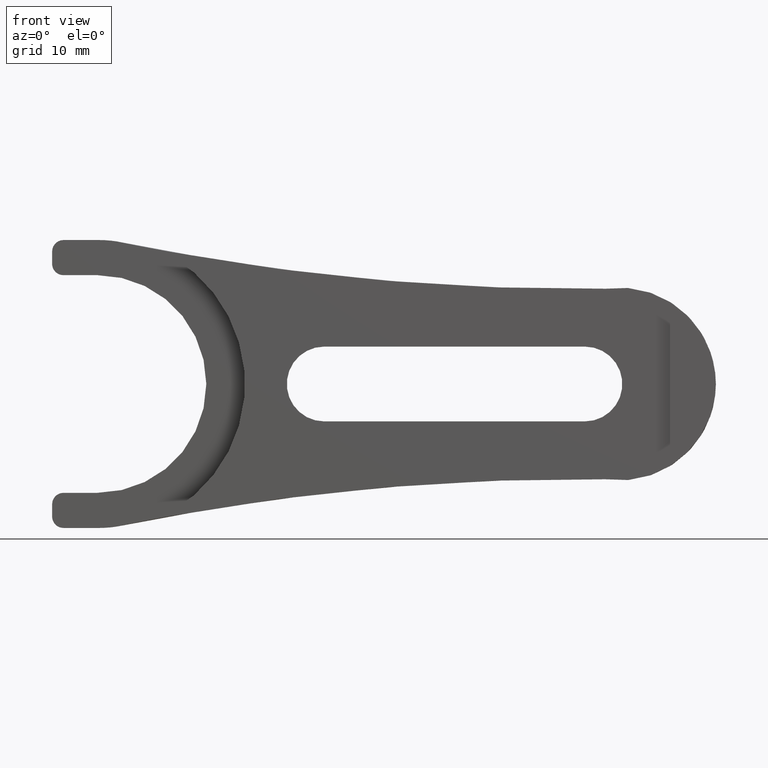
[diagram: clean part render]
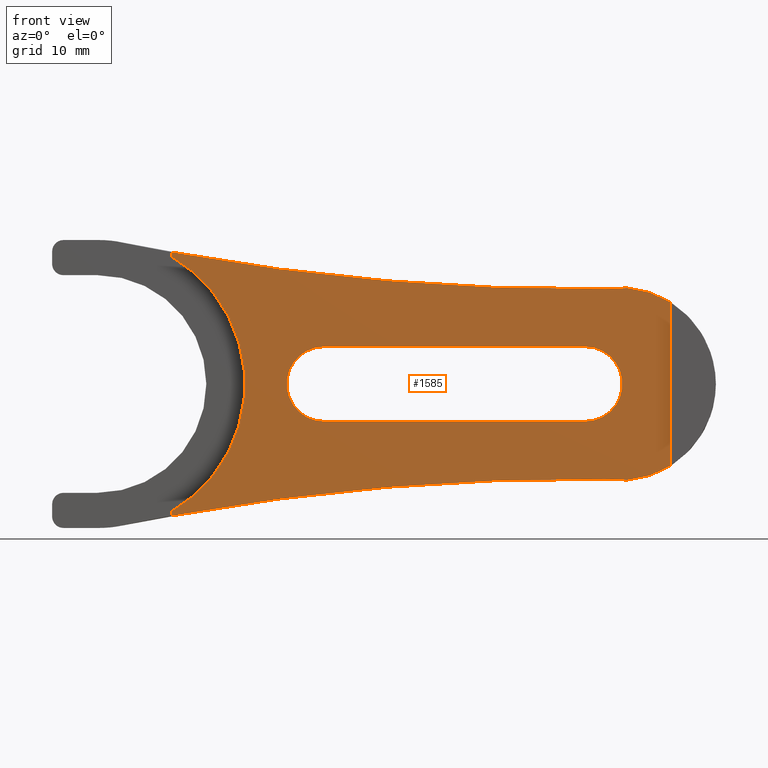
[diagram: same view with one face highlighted and labeled with its STEP entity id]
A machine part, front view. The second image highlights one B-rep face of the part: STEP entity #1585.
In plain terms, the highlighted planar face has unit normal (0, 1, 0).
Its self-contained STEP definition (entity closure, byte-faithful):
#8 = CIRCLE ( 'NONE', #1023, 12.99999999999999822 ) ;
#41 = CARTESIAN_POINT ( 'NONE',  ( -66.59457426940821279, 1.599999999999998979, -38.32969599760033219 ) ) ;
#45 = VERTEX_POINT ( 'NONE', #58 ) ;
#58 = CARTESIAN_POINT ( 'NONE',  ( -30.09457426940821279, 1.599999999999998979, -29.99062565510759271 ) ) ;
#62 = CIRCLE ( 'NONE', #1332, 199.9950038775353391 ) ;
#72 = ORIENTED_EDGE ( 'NONE', *, *, #1342, .F. ) ;
#79 = DIRECTION ( 'NONE',  ( 0.000000000000000000, 0.000000000000000000, -1.000000000000000000 ) ) ;
#85 = DIRECTION ( 'NONE',  ( 1.000000000000000000, 0.000000000000000000, 0.000000000000000000 ) ) ;
#98 = VERTEX_POINT ( 'NONE', #692 ) ;
#107 = DIRECTION ( 'NONE',  ( -0.000000000000000000, -1.000000000000000000, -0.000000000000000000 ) ) ;
#112 = EDGE_CURVE ( 'NONE', #620, #712, #62, .T. ) ;
#113 = AXIS2_PLACEMENT_3D ( 'NONE', #1316, #180, #803 ) ;
#125 = DIRECTION ( 'NONE',  ( 0.000000000000000000, 0.000000000000000000, 1.000000000000000000 ) ) ;
#159 = DIRECTION ( 'NONE',  ( 7.112543927207386922E-15, 0.000000000000000000, 1.000000000000000000 ) ) ;
#167 = VECTOR ( 'NONE', #79, 1000.000000000000000 ) ;
#178 = DIRECTION ( 'NONE',  ( -0.000000000000000000, -1.000000000000000000, -0.000000000000000000 ) ) ;
#180 = DIRECTION ( 'NONE',  ( -0.000000000000000000, -1.000000000000000000, -0.000000000000000000 ) ) ;
#192 = CARTESIAN_POINT ( 'NONE',  ( -27.04457426940821207, 1.599999999999998979, -26.69062565510759555 ) ) ;
#216 = CARTESIAN_POINT ( 'NONE',  ( -66.59457426940825542, 1.599999999999999867, -15.43229540590987448 ) ) ;
#237 = ORIENTED_EDGE ( 'NONE', *, *, #1363, .F. ) ;
#238 = EDGE_CURVE ( 'NONE', #712, #719, #733, .T. ) ;
#261 = DIRECTION ( 'NONE',  ( 9.760048930546196936E-17, 0.000000000000000000, -1.000000000000000000 ) ) ;
#264 = VERTEX_POINT ( 'NONE', #216 ) ;
#281 = VERTEX_POINT ( 'NONE', #722 ) ;
#322 = VERTEX_POINT ( 'NONE', #771 ) ;
#339 = DIRECTION ( 'NONE',  ( 0.000000000000000000, -0.000000000000000000, 1.000000000000000000 ) ) ;
#345 = DIRECTION ( 'NONE',  ( 0.000000000000000000, 0.000000000000000000, -1.000000000000000000 ) ) ;
#358 = VECTOR ( 'NONE', #261, 1000.000000000000000 ) ;
#371 = CARTESIAN_POINT ( 'NONE',  ( -53.09457426940822700, 1.599999999999998979, -26.69062565510759555 ) ) ;
#396 = CARTESIAN_POINT ( 'NONE',  ( -83.28531426940824645, 1.599999999999999867, -23.39062565510759839 ) ) ;
#430 = EDGE_CURVE ( 'NONE', #745, #623, #599, .T. ) ;
#435 = DIRECTION ( 'NONE',  ( -0.000000000000000000, -1.000000000000000000, -0.000000000000000000 ) ) ;
#443 = VECTOR ( 'NONE', #85, 1000.000000000000000 ) ;
#447 = CARTESIAN_POINT ( 'NONE',  ( -30.09457426940821279, 1.599999999999998979, -26.69062565510759555 ) ) ;
#483 = CARTESIAN_POINT ( 'NONE',  ( -28.30829174901908374, 1.599999999999998979, -18.28509068511752389 ) ) ;
#487 = CARTESIAN_POINT ( 'NONE',  ( -66.59457426940825542, 1.599999999999999867, -9.935752000000016793 ) ) ;
#501 = ORIENTED_EDGE ( 'NONE', *, *, #878, .F. ) ;
#505 = CARTESIAN_POINT ( 'NONE',  ( -27.04457426940821207, 1.599999999999998979, -26.69062565510759555 ) ) ;
#525 = ORIENTED_EDGE ( 'NONE', *, *, #238, .F. ) ;
#564 = VERTEX_POINT ( 'NONE', #41 ) ;
#567 = DIRECTION ( 'NONE',  ( 0.000000000000000000, 0.000000000000000000, 1.000000000000000000 ) ) ;
#592 = FACE_BOUND ( 'NONE', #971, .T. ) ;
#597 = CARTESIAN_POINT ( 'NONE',  ( -66.59457426940825542, 1.599999999999999867, -9.935752000000016793 ) ) ;
#599 = CIRCLE ( 'NONE', #805, 3.299999999999997158 ) ;
#606 = ORIENTED_EDGE ( 'NONE', *, *, #1399, .F. ) ;
#610 = DIRECTION ( 'NONE',  ( 0.000000000000000000, 0.000000000000000000, 1.000000000000000000 ) ) ;
#620 = VERTEX_POINT ( 'NONE', #1325 ) ;
#623 = VERTEX_POINT ( 'NONE', #1076 ) ;
#634 = EDGE_CURVE ( 'NONE', #98, #564, #960, .T. ) ;
#640 = VERTEX_POINT ( 'NONE', #1107 ) ;
#652 = CIRCLE ( 'NONE', #1600, 3.299999999999997158 ) ;
#653 = ORIENTED_EDGE ( 'NONE', *, *, #1203, .F. ) ;
#654 = AXIS2_PLACEMENT_3D ( 'NONE', #192, #1089, #610 ) ;
#685 = CARTESIAN_POINT ( 'NONE',  ( -30.69820305420873652, 1.599999999999998979, 181.6956331357765180 ) ) ;
#692 = CARTESIAN_POINT ( 'NONE',  ( -66.59457426940825542, 1.599999999999999867, -37.94895590430531485 ) ) ;
#712 = VERTEX_POINT ( 'NONE', #483 ) ;
#714 = CARTESIAN_POINT ( 'NONE',  ( -22.59457426940821634, 1.599999999999998979, -19.44856103236360312 ) ) ;
#716 = FACE_OUTER_BOUND ( 'NONE', #906, .T. ) ;
#719 = VERTEX_POINT ( 'NONE', #714 ) ;
#722 = CARTESIAN_POINT ( 'NONE',  ( -22.59457426940821634, 1.599999999999998979, -33.93269027785158443 ) ) ;
#733 = CIRCLE ( 'NONE', #654, 8.500000000000000000 ) ;
#745 = VERTEX_POINT ( 'NONE', #1195 ) ;
#771 = CARTESIAN_POINT ( 'NONE',  ( -30.09457426940821279, 1.599999999999998979, -23.39062565510759839 ) ) ;
#779 = DIRECTION ( 'NONE',  ( 0.000000000000000000, 0.000000000000000000, 1.000000000000000000 ) ) ;
#803 = DIRECTION ( 'NONE',  ( 0.000000000000000000, 0.000000000000000000, 1.000000000000000000 ) ) ;
#805 = AXIS2_PLACEMENT_3D ( 'NONE', #371, #107, #125 ) ;
#813 = DIRECTION ( 'NONE',  ( 0.000000000000000000, 0.000000000000000000, 1.000000000000000000 ) ) ;
#830 = ORIENTED_EDGE ( 'NONE', *, *, #1243, .F. ) ;
#854 = LINE ( 'NONE', #487, #167 ) ;
#859 = AXIS2_PLACEMENT_3D ( 'NONE', #505, #1022, #779 ) ;
#878 = EDGE_CURVE ( 'NONE', #322, #745, #1641, .T. ) ;
#906 = EDGE_LOOP ( 'NONE', ( #1591, #606, #1170, #237, #653, #830, #525, #1276 ) ) ;
#960 = LINE ( 'NONE', #597, #1596 ) ;
#971 = EDGE_LOOP ( 'NONE', ( #501, #72, #1217, #1483 ) ) ;
#974 = CARTESIAN_POINT ( 'NONE',  ( -83.28531426940824645, 1.599999999999999867, -9.935752000000016793 ) ) ;
#991 = DIRECTION ( 'NONE',  ( -1.000000000000000000, 0.000000000000000000, 0.000000000000000000 ) ) ;
#1022 = DIRECTION ( 'NONE',  ( 0.000000000000000000, 1.000000000000000000, 0.000000000000000000 ) ) ;
#1023 = AXIS2_PLACEMENT_3D ( 'NONE', #1191, #1428, #567 ) ;
#1076 = CARTESIAN_POINT ( 'NONE',  ( -53.09457426940822700, 1.599999999999998979, -29.99062565510759271 ) ) ;
#1089 = DIRECTION ( 'NONE',  ( 0.000000000000000000, 1.000000000000000000, 0.000000000000000000 ) ) ;
#1102 = PLANE ( 'NONE',  #1386 ) ;
#1107 = CARTESIAN_POINT ( 'NONE',  ( -28.30893117806940396, 1.599999999999998979, -35.09606446622984066 ) ) ;
#1123 = EDGE_CURVE ( 'NONE', #620, #264, #854, .T. ) ;
#1170 = ORIENTED_EDGE ( 'NONE', *, *, #634, .T. ) ;
#1191 = CARTESIAN_POINT ( 'NONE',  ( -73.09457426940821279, 1.599999999999999867, -26.69062565510759555 ) ) ;
#1195 = CARTESIAN_POINT ( 'NONE',  ( -53.09457426940822700, 1.599999999999998979, -23.39062565510759839 ) ) ;
#1203 = EDGE_CURVE ( 'NONE', #281, #640, #1572, .T. ) ;
#1217 = ORIENTED_EDGE ( 'NONE', *, *, #1513, .F. ) ;
#1232 = LINE ( 'NONE', #1612, #443 ) ;
#1243 = EDGE_CURVE ( 'NONE', #719, #281, #1259, .T. ) ;
#1259 = LINE ( 'NONE', #1400, #358 ) ;
#1276 = ORIENTED_EDGE ( 'NONE', *, *, #112, .F. ) ;
#1279 = VECTOR ( 'NONE', #991, 1000.000000000000000 ) ;
#1316 = CARTESIAN_POINT ( 'NONE',  ( -30.69780068763250469, 1.599999999999998979, -235.0768007346056834 ) ) ;
#1325 = CARTESIAN_POINT ( 'NONE',  ( -66.59457426940839753, 1.599999999999998979, -15.05154501312594384 ) ) ;
#1332 = AXIS2_PLACEMENT_3D ( 'NONE', #685, #178, #159 ) ;
#1342 = EDGE_CURVE ( 'NONE', #45, #322, #652, .T. ) ;
#1363 = EDGE_CURVE ( 'NONE', #640, #564, #1385, .T. ) ;
#1385 = CIRCLE ( 'NONE', #113, 199.9950038775354244 ) ;
#1386 = AXIS2_PLACEMENT_3D ( 'NONE', #974, #1470, #339 ) ;
#1399 = EDGE_CURVE ( 'NONE', #98, #264, #8, .T. ) ;
#1400 = CARTESIAN_POINT ( 'NONE',  ( -22.59457426940821634, 1.599999999999999867, -9.935752000000011463 ) ) ;
#1428 = DIRECTION ( 'NONE',  ( -0.000000000000000000, -1.000000000000000000, -0.000000000000000000 ) ) ;
#1470 = DIRECTION ( 'NONE',  ( 0.000000000000000000, 1.000000000000000000, 0.000000000000000000 ) ) ;
#1483 = ORIENTED_EDGE ( 'NONE', *, *, #430, .F. ) ;
#1513 = EDGE_CURVE ( 'NONE', #623, #45, #1232, .T. ) ;
#1572 = CIRCLE ( 'NONE', #859, 8.500000000000000000 ) ;
#1585 = ADVANCED_FACE ( 'NONE', ( #716, #592 ), #1102, .F. ) ;
#1591 = ORIENTED_EDGE ( 'NONE', *, *, #1123, .T. ) ;
#1596 = VECTOR ( 'NONE', #345, 1000.000000000000000 ) ;
#1600 = AXIS2_PLACEMENT_3D ( 'NONE', #447, #435, #813 ) ;
#1612 = CARTESIAN_POINT ( 'NONE',  ( -83.28531426940824645, 1.599999999999999867, -29.99062565510759271 ) ) ;
#1641 = LINE ( 'NONE', #396, #1279 ) ;